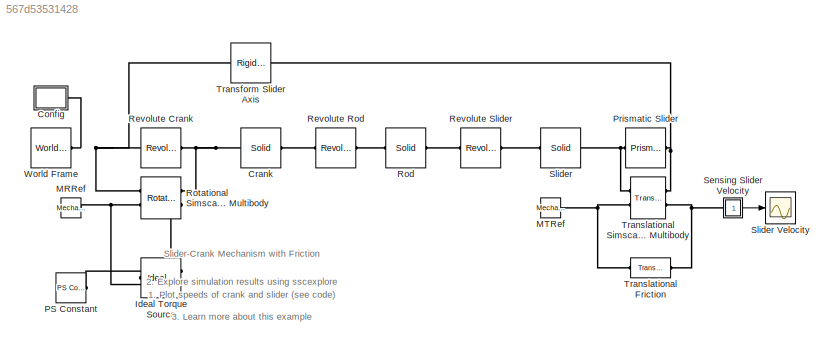
MODEL slx_567d53531428
KIND model
CONFIG AbsTol = auto
CONFIG EnableMultiTasking = on
CONFIG FixedStep = auto
CONFIG MaxStep = auto
CONFIG MinStep = auto
CONFIG RelTol = 1e-3
CONFIG SampleTimeConstraint = Unconstrained
CONFIG Solver = VariableStepAuto
CONFIG SolverName = VariableStepAuto
CONFIG StartTime = 0.0
CONFIG StopTime = 10.0
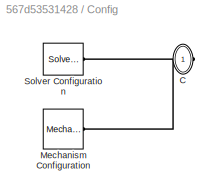
BLOCK [SubSystem] Config
  Ports = [0, 0, 0, 0, 0, 0, 1]
  RequestExecContextInheritance = off
  Variant = off
BLOCK [PMIOPort] Config/C
  Port = 1
  Side = Right
BLOCK [Reference] Config/Mechanism Configuration  REF=sm_lib/Utilities/Mechanism
Configuration
  Ports = [0, 0, 0, 0, 0, 0, 1]
  SourceBlock = sm_lib/Utilities/Mechanism\nConfiguration
  SourceProductBaseCode = MS
  SourceProductName = Simscape Multibody
  SourceType = Mechanism\nConfiguration
BLOCK [Reference] Config/Solver Configuration  REF=nesl_utility/Solver
Configuration
  Ports = [0, 0, 0, 0, 0, 0, 1]
  SourceBlock = nesl_utility/Solver\nConfiguration
  SourceProductBaseCode = SS
  SourceProductName = Simscape
  SourceType = Solver\nConfiguration
BLOCK [Reference] Crank  REF=sm_lib/Body Elements/Solid
  Ports = [0, 0, 0, 0, 0, 1, 1]
  SourceBlock = sm_lib/Body Elements/Solid
  SourceProductBaseCode = MS
  SourceProductName = Simscape Multibody
  SourceType = Solid
BLOCK [Reference] Ideal Torque Source  REF=fl_lib/Mechanical/Mechanical Sources/Ideal Torque Source
  Ports = [0, 0, 0, 0, 0, 1, 2]
  SourceBlock = fl_lib/Mechanical/Mechanical Sources/Ideal Torque Source
  SourceProductBaseCode = SS
  SourceProductName = Simscape
  SourceType = Ideal Torque Source
BLOCK [Reference] MRRef  REF=fl_lib/Mechanical/Rotational Elements/Mechanical
Rotational Reference
  Ports = [0, 0, 0, 0, 0, 1]
  SourceBlock = fl_lib/Mechanical/Rotational Elements/Mechanical\nRotational Reference
  SourceProductBaseCode = SS
  SourceProductName = Simscape
  SourceType = Mechanical\nRotational Reference
BLOCK [Reference] MTRef  REF=fl_lib/Mechanical/Translational
Elements/Mechanical
Translational
Reference
  Ports = [0, 0, 0, 0, 0, 1]
  SourceBlock = fl_lib/Mechanical/Translational\nElements/Mechanical\nTranslational\nReference
  SourceProductBaseCode = SS
  SourceProductName = Simscape
  SourceType = Mechanical\nTranslational\nReference
BLOCK [Reference] PS Constant  REF=fl_lib/Physical Signals/Sources/PS Constant
  Ports = [0, 0, 0, 0, 0, 0, 1]
  SourceBlock = fl_lib/Physical Signals/Sources/PS Constant
  SourceProductBaseCode = SS
  SourceProductName = Simscape
  SourceType = PS Constant
BLOCK [Reference] Prismatic Slider  REF=sm_lib/Joints/Prismatic
Joint
  Ports = [0, 0, 0, 0, 0, 1, 1]
  SourceBlock = sm_lib/Joints/Prismatic\nJoint
  SourceProductBaseCode = MS
  SourceProductName = Simscape Multibody
  SourceType = Prismatic\nJoint
BLOCK [Reference] Revolute Crank  REF=sm_lib/Joints/Revolute Joint
  Ports = [0, 0, 0, 0, 0, 1, 1]
  SourceBlock = sm_lib/Joints/Revolute Joint
  SourceProductBaseCode = MS
  SourceProductName = Simscape Multibody
  SourceType = Revolute Joint
BLOCK [Reference] Revolute Rod  REF=sm_lib/Joints/Revolute Joint
  Ports = [0, 0, 0, 0, 0, 1, 1]
  SourceBlock = sm_lib/Joints/Revolute Joint
  SourceProductBaseCode = MS
  SourceProductName = Simscape Multibody
  SourceType = Revolute Joint
BLOCK [Reference] Revolute Slider  REF=sm_lib/Joints/Revolute Joint
  Ports = [0, 0, 0, 0, 0, 1, 1]
  SourceBlock = sm_lib/Joints/Revolute Joint
  SourceProductBaseCode = MS
  SourceProductName = Simscape Multibody
  SourceType = Revolute Joint
BLOCK [Reference] Rod  REF=sm_lib/Body Elements/Solid
  Ports = [0, 0, 0, 0, 0, 1, 1]
  SourceBlock = sm_lib/Body Elements/Solid
  SourceProductBaseCode = MS
  SourceProductName = Simscape Multibody
  SourceType = Solid
BLOCK [Reference] Rotational Simscape Multibody  REF=Multibody_Multiphysics_Lib/Interfaces/Rotational
Simscape Multibody
  Ports = [0, 0, 0, 0, 0, 2, 2]
  SourceBlock = Multibody_Multiphysics_Lib/Interfaces/Rotational\nSimscape Multibody
  SourceProductName = Simscape Multibody Multiphysics Library
  SourceType = SubSystem
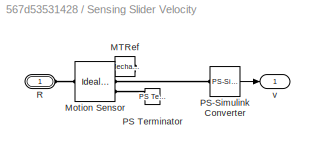
BLOCK [SubSystem] Sensing Slider Velocity
  Ports = [0, 1, 0, 0, 0, 1]
  RequestExecContextInheritance = off
  Variant = off
BLOCK [Reference] Sensing Slider Velocity/MTRef  REF=fl_lib/Mechanical/Translational
Elements/Mechanical
Translational
Reference
  Ports = [0, 0, 0, 0, 0, 1]
  SourceBlock = fl_lib/Mechanical/Translational\nElements/Mechanical\nTranslational\nReference
  SourceProductBaseCode = SS
  SourceProductName = Simscape
  SourceType = Mechanical\nTranslational\nReference
BLOCK [Reference] Sensing Slider Velocity/Motion Sensor  REF=fl_lib/Mechanical/Mechanical Sensors/Ideal Translational
Motion Sensor
  Ports = [0, 0, 0, 0, 0, 1, 3]
  SourceBlock = fl_lib/Mechanical/Mechanical Sensors/Ideal Translational\nMotion Sensor
  SourceProductBaseCode = SS
  SourceProductName = Simscape
  SourceType = Ideal Translational\nMotion Sensor
BLOCK [Reference] Sensing Slider Velocity/PS Terminator  REF=fl_lib/Physical Signals/Sinks/PS Terminator
  Ports = [0, 0, 0, 0, 0, 1]
  SourceBlock = fl_lib/Physical Signals/Sinks/PS Terminator
  SourceProductBaseCode = SS
  SourceProductName = Simscape
  SourceType = PS Terminator
BLOCK [Reference] Sensing Slider Velocity/PS-Simulink Converter  REF=nesl_utility/PS-Simulink
Converter
  Ports = [0, 1, 0, 0, 0, 1]
  SourceBlock = nesl_utility/PS-Simulink\nConverter
  SourceProductBaseCode = SS
  SourceProductName = Simscape
  SourceType = PS-Simulink\nConverter
BLOCK [PMIOPort] Sensing Slider Velocity/R
  Port = 1
  Side = Left
BLOCK [Outport] Sensing Slider Velocity/v
  IconDisplay = Port number
BLOCK [Reference] Slider  REF=sm_lib/Body Elements/Solid
  Ports = [0, 0, 0, 0, 0, 1, 1]
  SourceBlock = sm_lib/Body Elements/Solid
  SourceProductBaseCode = MS
  SourceProductName = Simscape Multibody
  SourceType = Solid
BLOCK [Scope] Slider Velocity
  NumInputPorts = 1
  Ports = [1]
  ScopeSpecificationString = Simulink.scopes.TimeScopeBlockCfg('CurrentConfiguration', extmgr.ConfigurationSet(extmgr.Configuration('Core','General UI',true),extmgr.Configuration('Core','Source UI',true),extmgr.Configuration('Sources','WiredSimulink',true,'DataLoggingLimitDataPoints',true,'DataLoggingSaveFormat','Array','DataLoggingDecimation','1','DataLoggingDecimateData',true),extmgr.Configuration('Visuals','Time Domain',tr...<+1648ch>
BLOCK [Reference] Transform Slider Axis  REF=sm_lib/Frames and
Transforms/Rigid
Transform
  Ports = [0, 0, 0, 0, 0, 1, 1]
  SourceBlock = sm_lib/Frames and\nTransforms/Rigid\nTransform
  SourceProductBaseCode = MS
  SourceProductName = Simscape Multibody
  SourceType = Rigid\nTransform
BLOCK [Reference] Translational Friction  REF=fl_lib/Mechanical/Translational
Elements/Translational
Friction
  Ports = [0, 0, 0, 0, 0, 1, 1]
  SourceBlock = fl_lib/Mechanical/Translational\nElements/Translational\nFriction
  SourceProductBaseCode = SS
  SourceProductName = Simscape
  SourceType = Translational\nFriction
BLOCK [Reference] Translational Simscape Multibody  REF=Multibody_Multiphysics_Lib/Interfaces/Translational
Simscape Multibody
  Ports = [0, 0, 0, 0, 0, 2, 2]
  SourceBlock = Multibody_Multiphysics_Lib/Interfaces/Translational\nSimscape Multibody
  SourceProductName = Simscape Multibody Multiphysics Library
  SourceType = SubSystem
BLOCK [Reference] World Frame  REF=sm_lib/Frames and
Transforms/World Frame
  Ports = [0, 0, 0, 0, 0, 0, 1]
  SourceBlock = sm_lib/Frames and\nTransforms/World Frame
  SourceProductBaseCode = MS
  SourceProductName = Simscape Multibody
  SourceType = World Frame
ANNOTATION (root): 1. Plot speeds of crank and slider ( see code ) 2. Explore simulation results using sscexplore 3. Learn more about this example
ANNOTATION (root): Slider-Crank Mechanism with Friction
LINE Sensing Slider Velocity/PS-Simulink Converter:1 -> Sensing Slider Velocity/v:1
LINE Sensing Slider Velocity:1 -> Slider Velocity:1
PNET net1: Config/C:RConn1 -- Config/Mechanism Configuration:RConn1 -- Config/Solver Configuration:RConn1
PNET net2: Config:RConn1 -- Revolute Crank:LConn1 -- Rotational Simscape Multibody:LConn1 -- Transform Slider Axis:LConn1 -- World Frame:RConn1
PNET net3: Crank:LConn1 -- Revolute Crank:RConn1 -- Rotational Simscape Multibody:RConn1
PLINE Crank:RConn1 -- Revolute Rod:LConn1
PLINE Ideal Torque Source:LConn1 -- Rotational Simscape Multibody:RConn2
PLINE Ideal Torque Source:RConn1 -- PS Constant:RConn1
PNET net4: Ideal Torque Source:RConn2 -- MRRef:LConn1 -- Rotational Simscape Multibody:LConn2
PNET net5: MTRef:LConn1 -- Translational Friction:RConn1 -- Translational Simscape Multibody:LConn2
PNET net6: Prismatic Slider:LConn1 -- Slider:LConn1 -- Translational Simscape Multibody:LConn1
PNET net7: Prismatic Slider:RConn1 -- Transform Slider Axis:RConn1 -- Translational Simscape Multibody:RConn1
PLINE Revolute Rod:RConn1 -- Rod:LConn1
PLINE Revolute Slider:LConn1 -- Rod:RConn1
PLINE Revolute Slider:RConn1 -- Slider:RConn1
PLINE Sensing Slider Velocity/MTRef:LConn1 -- Sensing Slider Velocity/Motion Sensor:RConn1
PLINE Sensing Slider Velocity/Motion Sensor:LConn1 -- Sensing Slider Velocity/R:RConn1
PLINE Sensing Slider Velocity/Motion Sensor:RConn2 -- Sensing Slider Velocity/PS-Simulink Converter:LConn1
PLINE Sensing Slider Velocity/Motion Sensor:RConn3 -- Sensing Slider Velocity/PS Terminator:LConn1
PNET net8: Sensing Slider Velocity:LConn1 -- Translational Friction:LConn1 -- Translational Simscape Multibody:RConn2
note: PNET lines group multi-terminal physical nets as a canonical sorted terminal list (undirected conserving connections); 2-terminal nets keep the pairwise PLINE form
